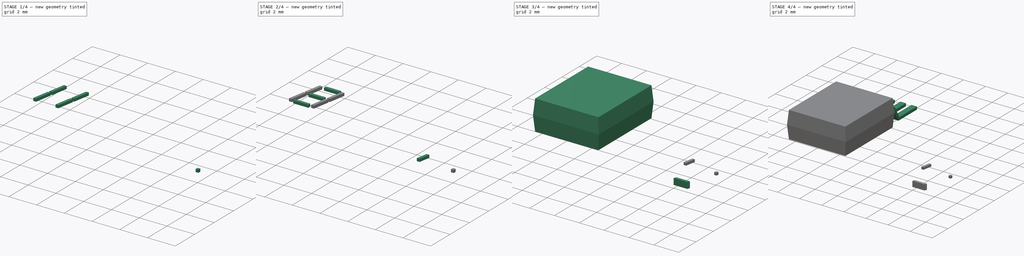
[diagram: build sequence overview — one tinted view per stage of 4, left to right]
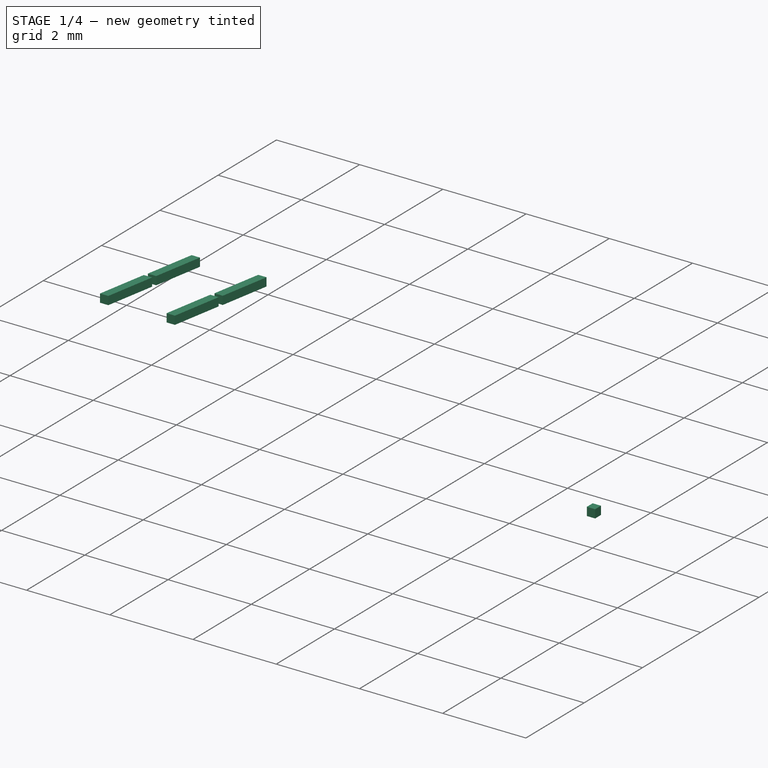
[diagram: stage 1 of 4 — iso view after this stage's code; geometry added in this stage tinted green]
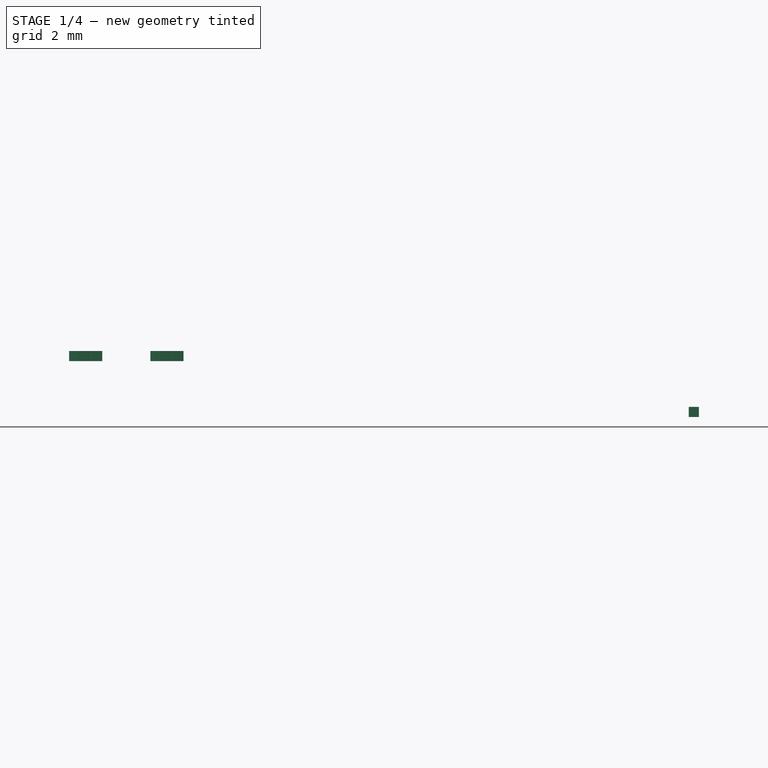
[diagram: stage 1 of 4 — front view after this stage's code; geometry added in this stage tinted green]
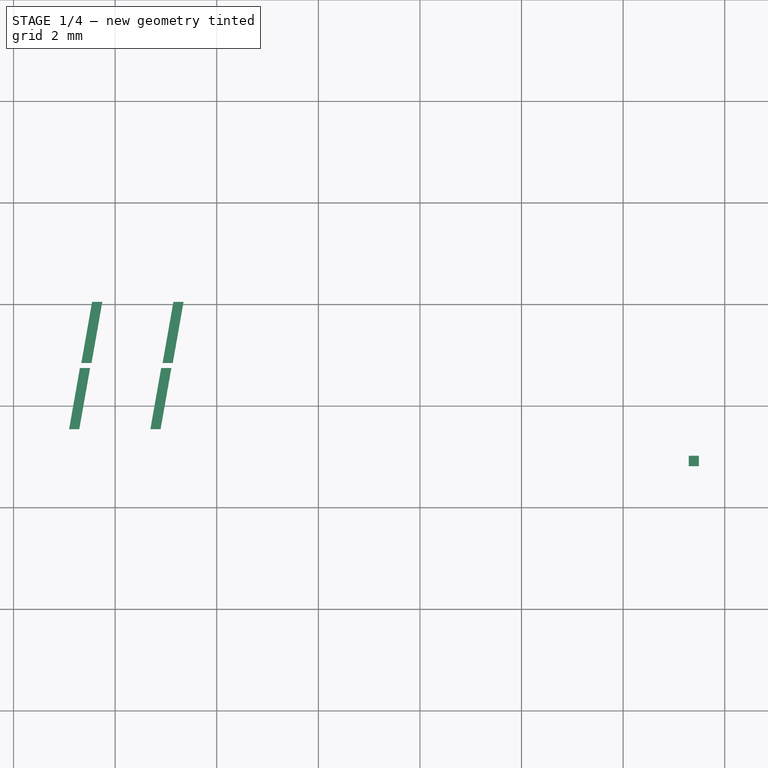
[diagram: stage 1 of 4 — top view after this stage's code; geometry added in this stage tinted green]
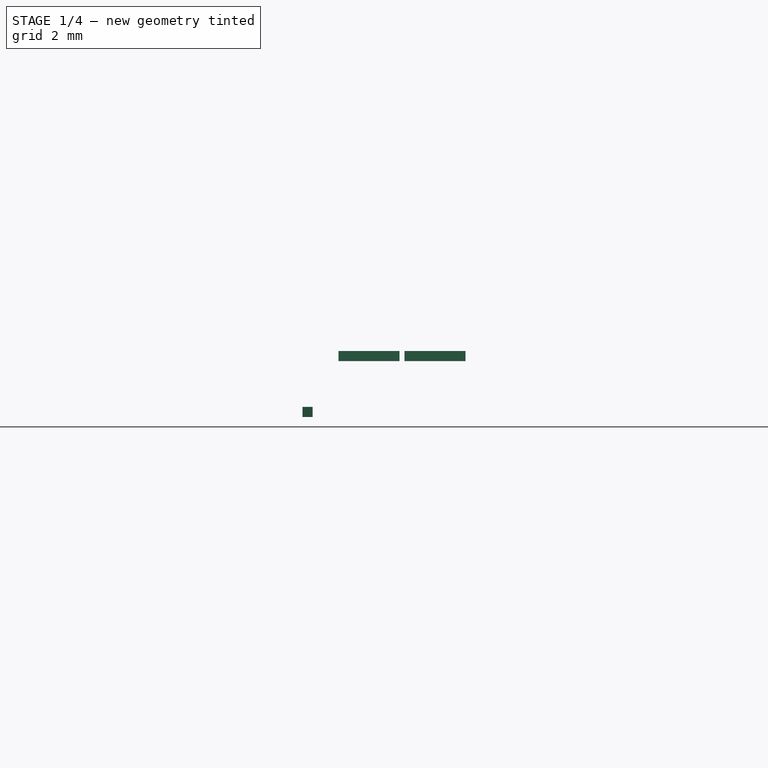
[diagram: stage 1 of 4 — right view after this stage's code; geometry added in this stage tinted green]
FCSTD DOCUMENT  (FreeCAD 0.18R16131 (Git))
Label: ALS314
License: All rights reserved
LicenseURL: http://en.wikipedia.org/wiki/All_rights_reserved
objects: Sketcher::SketchObject×7, PartDesign::Pad×7, PartDesign::Body×7, App::MeasureDistance×4, Part::FeaturePython×3, Part::Mirroring×1, Part::Chamfer×1
note: 33 computed .brp shape members not serialized (recipe doc carries the construction recipe); baked Part::Feature solids carry a one-line shape summary decoded from their .brp

FEATURE [PartDesign::Body] Body004
  Group = -> [Sketch004,Pad004]
  Origin = -> Origin004
  Tip = -> Pad004
FEATURE [Sketcher::SketchObject] Sketch005
  MapMode = 5
  Support = -> [XY_Plane005]
  sketch-geometry (4):
    g0: LineSegment StartX=10.6945 StartY=4.92683 StartZ=0 EndX=10.8945 EndY=4.92681 EndZ=0
    g1: LineSegment StartX=10.8945 StartY=4.92681 StartZ=0 EndX=11.1062 EndY=6.12681 EndZ=0
    g2: LineSegment StartX=11.1062 StartY=6.12681 StartZ=0 EndX=10.9062 EndY=6.12683 EndZ=0
    g3: LineSegment StartX=10.9062 StartY=6.12683 StartZ=0 EndX=10.6945 EndY=4.92683 EndZ=0
  constraints (9):
    c: Coincident(g0,g1)
    c: Coincident(g1,g2)
    c: Coincident(g2,g3)
    c: Coincident(g3,g0)
    c: Parallel(g1,g3)
    c: Angle(g1,g0) = 1.74533
    c: DistanceX(g0,g0) = 0.2
    c: DistanceY(g1,g1) = 1.2
    c: DistanceY(g3,g3) = 1.2
FEATURE [PartDesign::Pad] Pad005
  Length = 0.2
  Length2 = 100
  Profile = -> Sketch005
  Type = 0
FEATURE [PartDesign::Body] Body005
  Group = -> [Sketch005,Pad005]
  Origin = -> Origin005
  Tip = -> Pad005
FEATURE [Part::FeaturePython] Array002  # Draft array (typed FeaturePython)
  Angle = 360
  ArrayType = 0
  Axis = (0,0,1)
  Base = -> Pad005
  Center = (0,0,0)
  Fuse = false
  IntervalAxis = (0,0,0)
  IntervalX = (1.6,0,0)
  IntervalY = (0.24,1.3,0)
  IntervalZ = (0,0,1)
  NumberPolar = 1
  NumberX = 2
  NumberY = 2
  NumberZ = 1
  Placement = pos=(-9.6,0.6,1.1) rot=(0,0,1;0rad)
FEATURE [Sketcher::SketchObject] Sketch006
  MapMode = 5
  Support = -> [XY_Plane006]
  sketch-geometry (4):
    g0: LineSegment StartX=13.2907 StartY=5.01765 StartZ=0 EndX=13.4907 EndY=5.01765 EndZ=0
    g1: LineSegment StartX=13.4907 StartY=5.01765 StartZ=0 EndX=13.4907 EndY=4.81765 EndZ=0
    g2: LineSegment StartX=13.4907 StartY=4.81765 StartZ=0 EndX=13.2907 EndY=4.81765 EndZ=0
    g3: LineSegment StartX=13.2907 StartY=4.81765 StartZ=0 EndX=13.2907 EndY=5.01765 EndZ=0
  constraints (10):
    c: Coincident(g0,g1)
    c: Coincident(g1,g2)
    c: Coincident(g2,g3)
    c: Coincident(g3,g0)
    c: Horizontal(g0)
    c: Horizontal(g2)
    c: Vertical(g1)
    c: Vertical(g3)
    c: DistanceY(g1,g1) = 0.2
    c: DistanceX(g0,g0) = 0.2
FEATURE [PartDesign::Pad] Pad006
  Length = 0.2
  Length2 = 100
  Profile = -> Sketch006
  Type = 0
FEATURE [PartDesign::Body] Body006
  Group = -> [Sketch006,Pad006]
  Origin = -> Origin006
  Placement = pos=(-9.6,0.6,1.1) rot=(0,0,1;0rad)
  Tip = -> Pad006
FEATURE [App::MeasureDistance] Distance  label="Distance: 5,11 mm"
  Distance = 5.10545
  P1 = (-0.277276,5.62597,2.4)
  P2 = (4.82272,5.39013,2.4)
FEATURE [App::MeasureDistance] Distance001  label="Distance: 6,01 mm"
  Distance = 6.01104
  P1 = (1.11049,3.59212,2.4)
  P2 = (1.50129,9.59044,2.4)
FEATURE [App::MeasureDistance] Distance002  label="Distance: 1,00 mm"
  Distance = 1.00165
  P1 = (1e-16,0.862426,0.250166)
  P2 = (1,0.804907,0.250166)
FEATURE [App::MeasureDistance] Distance003  label="Distance: 0,50 mm"
  Distance = 0.500671
  P1 = (1e-16,12.2976,0.250166)
  P2 = (0.5,12.2717,0.250166)
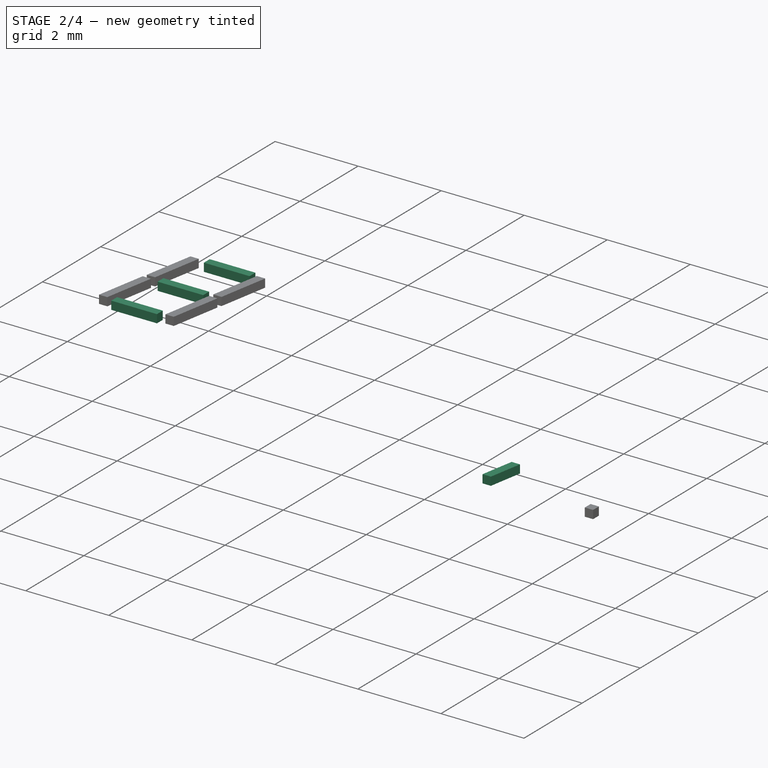
[diagram: stage 2 of 4 — iso view after this stage's code; geometry added in this stage tinted green]
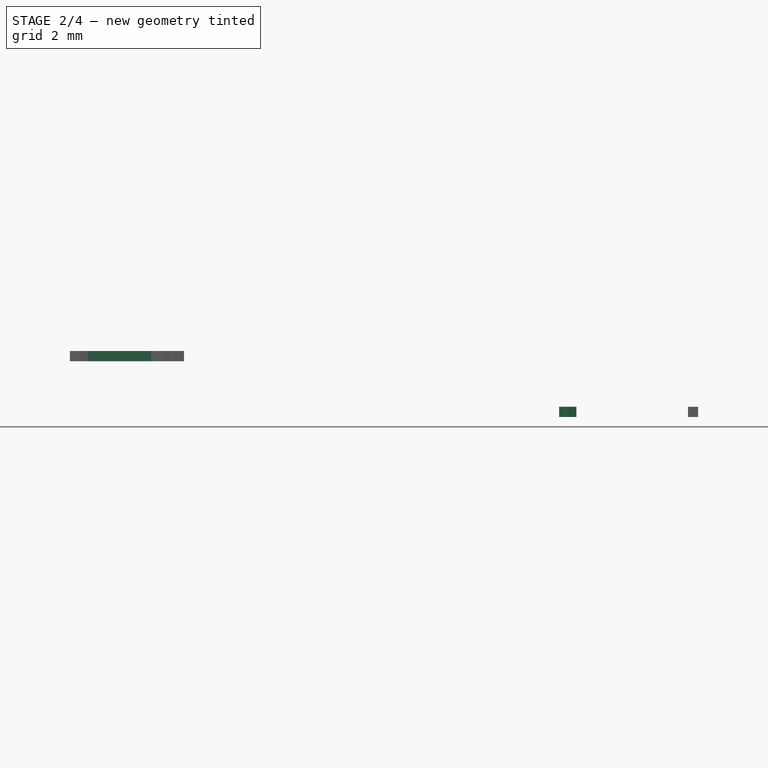
[diagram: stage 2 of 4 — front view after this stage's code; geometry added in this stage tinted green]
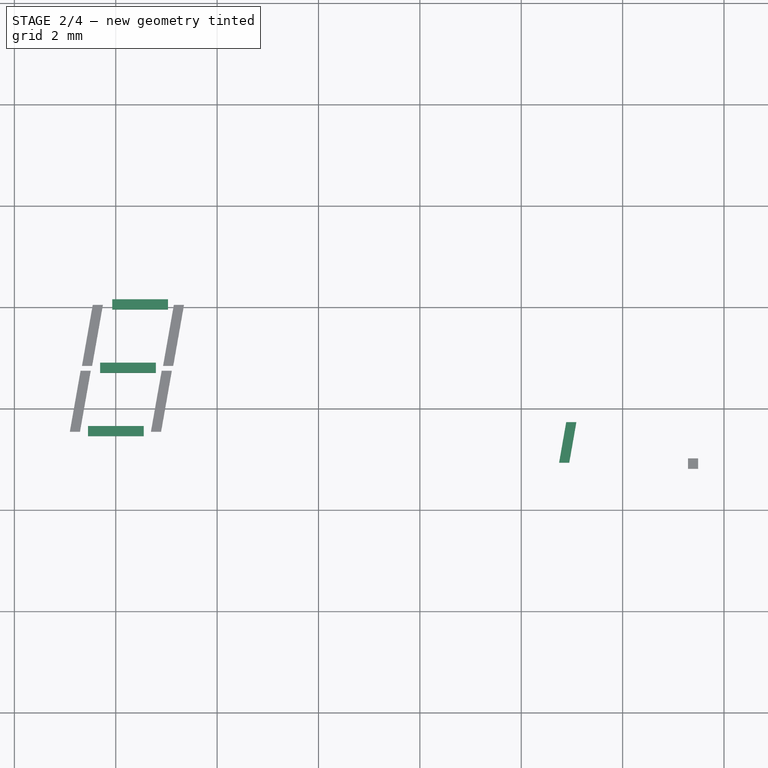
[diagram: stage 2 of 4 — top view after this stage's code; geometry added in this stage tinted green]
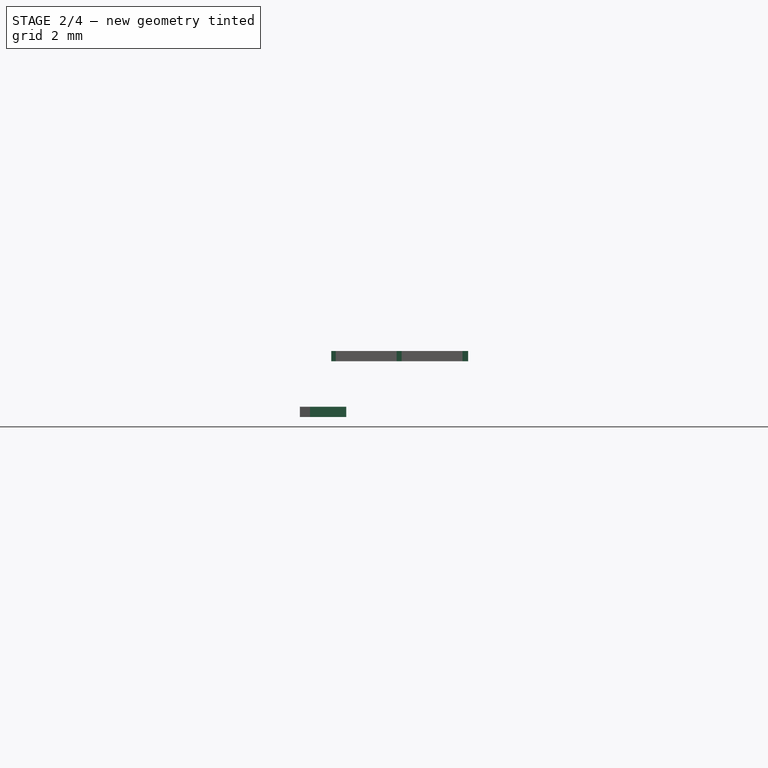
[diagram: stage 2 of 4 — right view after this stage's code; geometry added in this stage tinted green]
FEATURE [PartDesign::Body] Body002
  Group = -> [Sketch002,Pad002]
  Origin = -> Origin002
  Tip = -> Pad002
FEATURE [Sketcher::SketchObject] Sketch003
  MapMode = 5
  Support = -> [XY_Plane003]
  sketch-geometry (4):
    g0: LineSegment StartX=10.9431 StartY=4.20624 StartZ=0 EndX=12.0431 EndY=4.20624 EndZ=0
    g1: LineSegment StartX=12.0431 StartY=4.20624 StartZ=0 EndX=12.0431 EndY=4.00624 EndZ=0
    g2: LineSegment StartX=12.0431 StartY=4.00624 StartZ=0 EndX=10.9431 EndY=4.00624 EndZ=0
    g3: LineSegment StartX=10.9431 StartY=4.00624 StartZ=0 EndX=10.9431 EndY=4.20624 EndZ=0
  constraints (10):
    c: Coincident(g0,g1)
    c: Coincident(g1,g2)
    c: Coincident(g2,g3)
    c: Coincident(g3,g0)
    c: Horizontal(g0)
    c: Horizontal(g2)
    c: Vertical(g1)
    c: Vertical(g3)
    c: DistanceY(g1,g1) = 0.2
    c: DistanceX(g2,g2) = 1.1
FEATURE [PartDesign::Pad] Pad003
  Length = 0.2
  Length2 = 100
  Profile = -> Sketch003
  Type = 0
FEATURE [PartDesign::Body] Body003
  Group = -> [Sketch003,Pad003]
  Origin = -> Origin003
  Placement = pos=(0.109273,0.83182,-0.2) rot=(0,0,1;0rad)
  Tip = -> Pad003
FEATURE [Part::FeaturePython] Array001  # Draft array (typed FeaturePython)
  Angle = 360
  ArrayType = 0
  Axis = (0,0,1)
  Base = -> Body003
  Center = (0,0,0)
  Fuse = false
  IntervalAxis = (0,0,0)
  IntervalX = (1,0,0)
  IntervalY = (0.24,1.25,0)
  IntervalZ = (0,0,1)
  NumberPolar = 1
  NumberX = 1
  NumberY = 3
  NumberZ = 1
  Placement = pos=(-9.6,0.6,1.3) rot=(0,0,1;0rad)
FEATURE [Sketcher::SketchObject] Sketch004
  MapMode = 5
  Support = -> [XY_Plane004]
  sketch-geometry (4):
    g0: LineSegment StartX=10.7471 StartY=4.9341 StartZ=0 EndX=10.9471 EndY=4.93424 EndZ=0
    g1: LineSegment StartX=10.9471 StartY=4.93424 StartZ=0 EndX=11.0876 EndY=5.73424 EndZ=0
    g2: LineSegment StartX=11.0876 StartY=5.73424 StartZ=0 EndX=10.8876 EndY=5.7341 EndZ=0
    g3: LineSegment StartX=10.8876 StartY=5.7341 StartZ=0 EndX=10.7471 EndY=4.9341 EndZ=0
  constraints (9):
    c: Coincident(g0,g1)
    c: Coincident(g1,g2)
    c: Coincident(g2,g3)
    c: Coincident(g3,g0)
    c: Angle(g1,g0) = 1.74533
    c: DistanceX(g0,g0) = 0.2
    c: DistanceX(g2,g2) = 0.2
    c: DistanceY(g1,g1) = 0.8
    c: DistanceY(g3,g3) = 0.8
FEATURE [PartDesign::Pad] Pad004
  Length = 0.2
  Length2 = 100
  Profile = -> Sketch004
  Type = 0
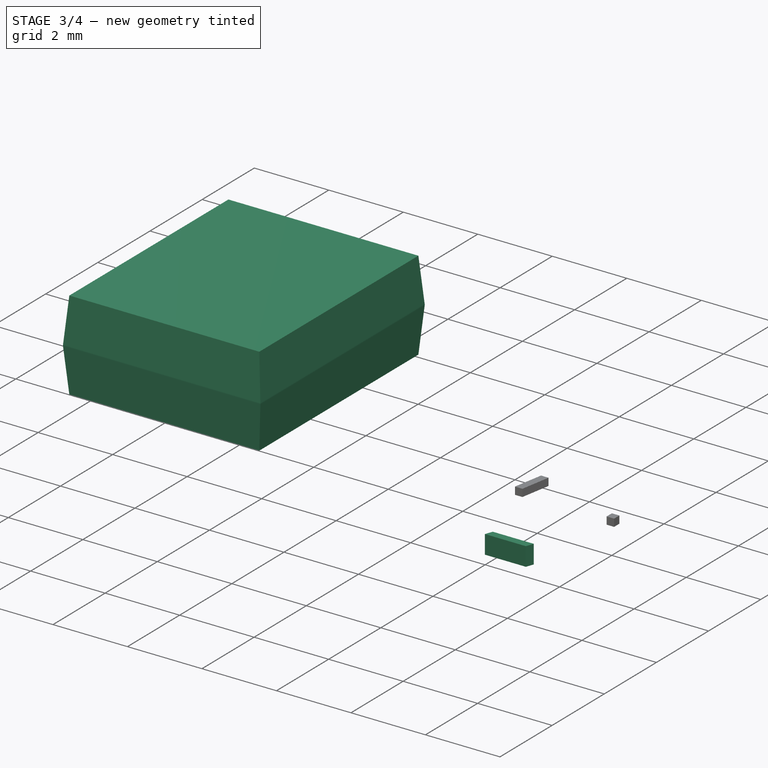
[diagram: stage 3 of 4 — iso view after this stage's code; geometry added in this stage tinted green]
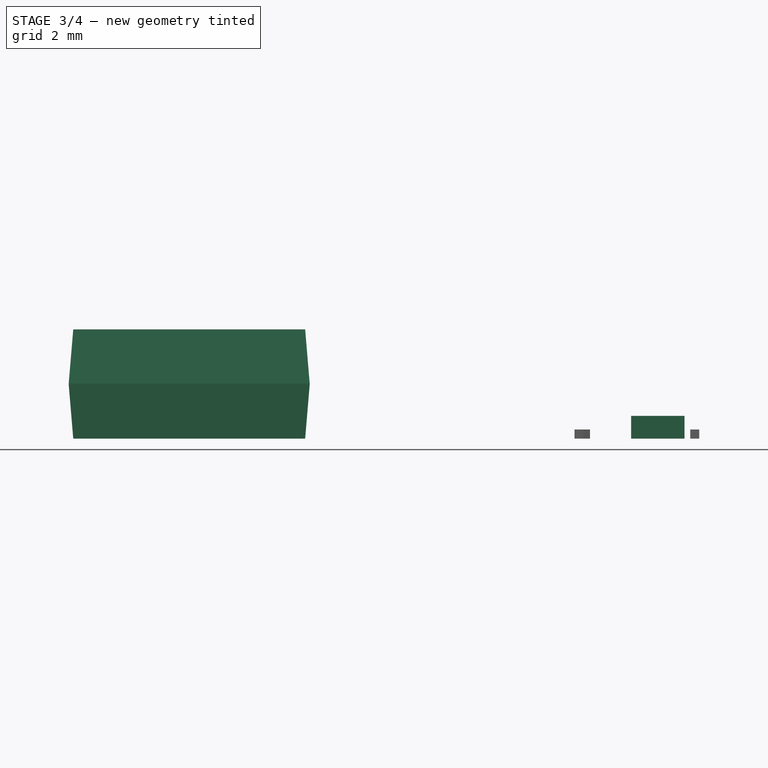
[diagram: stage 3 of 4 — front view after this stage's code; geometry added in this stage tinted green]
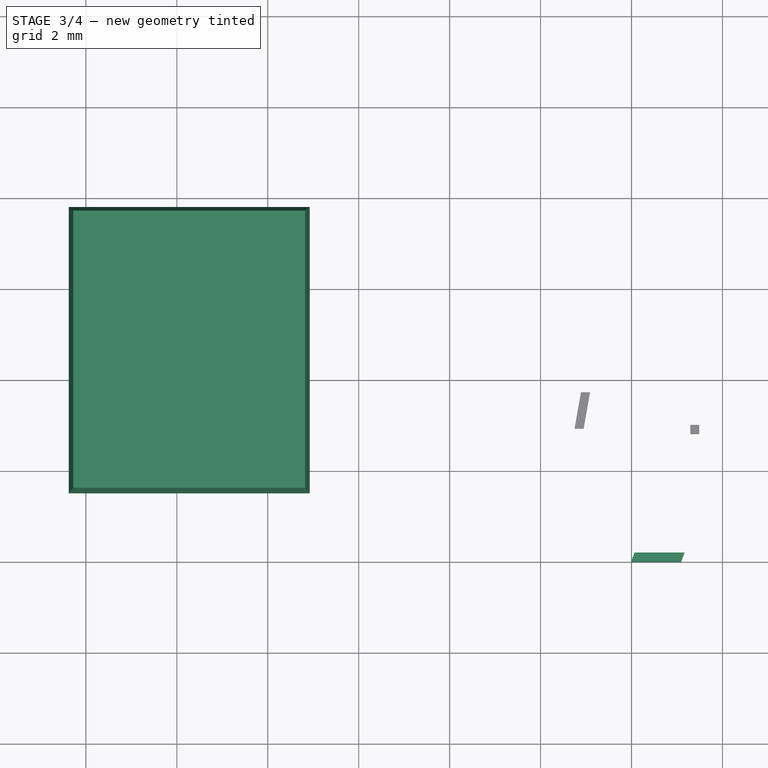
[diagram: stage 3 of 4 — top view after this stage's code; geometry added in this stage tinted green]
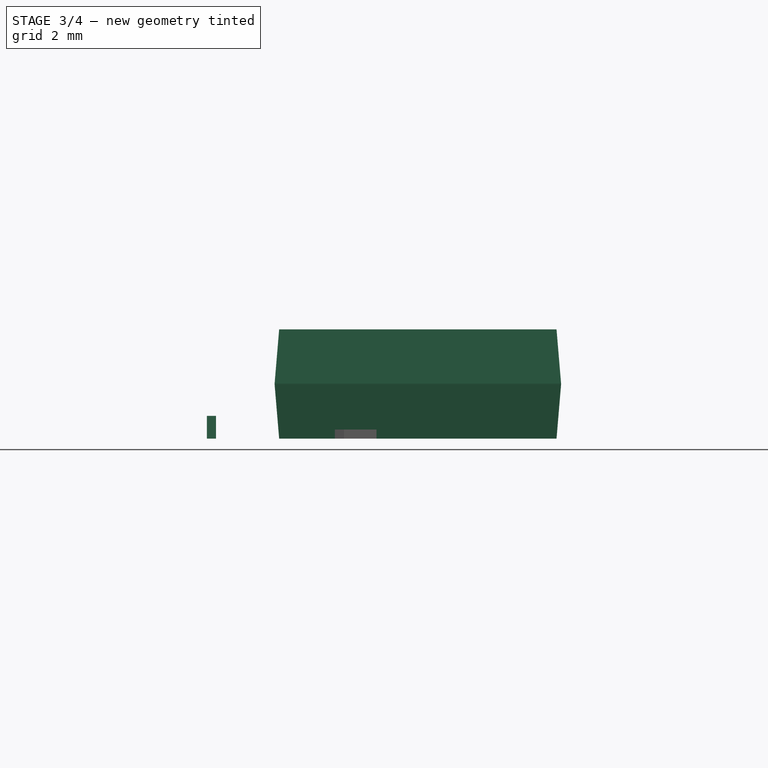
[diagram: stage 3 of 4 — right view after this stage's code; geometry added in this stage tinted green]
FEATURE [Sketcher::SketchObject] Sketch001
  MapMode = 5
  Support = -> [XY_Plane001]
  sketch-geometry (4):
    g0: LineSegment StartX=-0.377276 StartY=9.79212 StartZ=0 EndX=4.92272 EndY=9.79212 EndZ=0
    g1: LineSegment StartX=4.92272 StartY=9.79212 StartZ=0 EndX=4.92272 EndY=3.49212 EndZ=0
    g2: LineSegment StartX=4.92272 StartY=3.49212 StartZ=0 EndX=-0.377276 EndY=3.49212 EndZ=0
    g3: LineSegment StartX=-0.377276 StartY=3.49212 StartZ=0 EndX=-0.377276 EndY=9.79212 EndZ=0
  constraints (10):
    c: Coincident(g0,g1)
    c: Coincident(g1,g2)
    c: Coincident(g2,g3)
    c: Coincident(g3,g0)
    c: Horizontal(g0)
    c: Horizontal(g2)
    c: Vertical(g1)
    c: Vertical(g3)
    c: DistanceY(g1,g1) = 6.3
    c: DistanceX(g0,g0) = 5.3
FEATURE [PartDesign::Pad] Pad001
  Length = 2.4
  Length2 = 100
  Profile = -> Sketch001
  Type = 0
FEATURE [PartDesign::Body] Body001
  Group = -> [Sketch001,Pad001]
  Origin = -> Origin001
  Tip = -> Pad001
FEATURE [Part::Chamfer] Chamfer
  Base = -> Pad001
  Edges = 8 edges: [Edge3 r1=1.19 r2=0.1,Edge4 r1=1.19 r2=0.1,Edge6 r1=1.19 r2=0.1,Edge7 r1=1.19 r2=0.1,Edge9 r1=1.19 r2=0.1,Edge10 r1=1.19 r2=0.1,Edge11 r1=1.19 r2=0.1,Edge12 r1=1.19 r2=0.1]
FEATURE [Sketcher::SketchObject] Sketch002
  MapMode = 5
  Support = -> [XY_Plane002]
  sketch-geometry (4):
    g0: LineSegment StartX=11.9918 StartY=2.00389 StartZ=0 EndX=12.0646 EndY=2.20389 EndZ=0
    g1: LineSegment StartX=12.0646 StartY=2.20389 StartZ=0 EndX=13.1646 EndY=2.20365 EndZ=0
    g2: LineSegment StartX=13.1646 StartY=2.20365 StartZ=0 EndX=13.0918 EndY=2.00365 EndZ=0
    g3: LineSegment StartX=13.0918 StartY=2.00365 StartZ=0 EndX=11.9918 EndY=2.00389 EndZ=0
  constraints (9):
    c: Coincident(g0,g1)
    c: Coincident(g1,g2)
    c: Coincident(g2,g3)
    c: Coincident(g3,g0)
    c: Parallel(g2,g0)
    c: Parallel(g1,g3)
    c: Angle(g2,g3) = 1.91986
    c: DistanceY(g0,g0) = 0.2
    c: DistanceX(g3,g3) = 1.1
FEATURE [PartDesign::Pad] Pad002
  Length = 0.5
  Length2 = 100
  Profile = -> Sketch002
  Type = 0
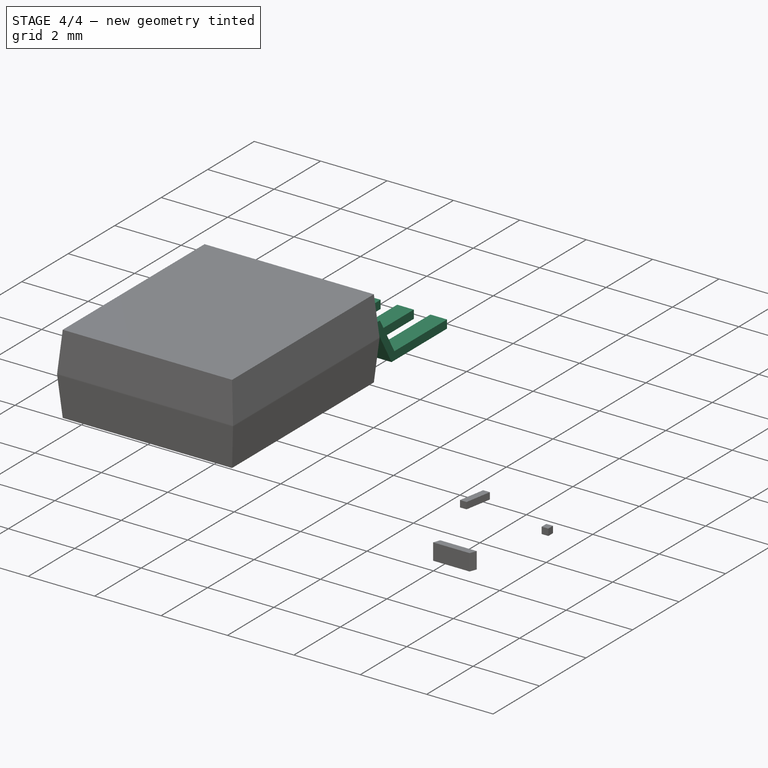
[diagram: stage 4 of 4 — iso view after this stage's code; geometry added in this stage tinted green]
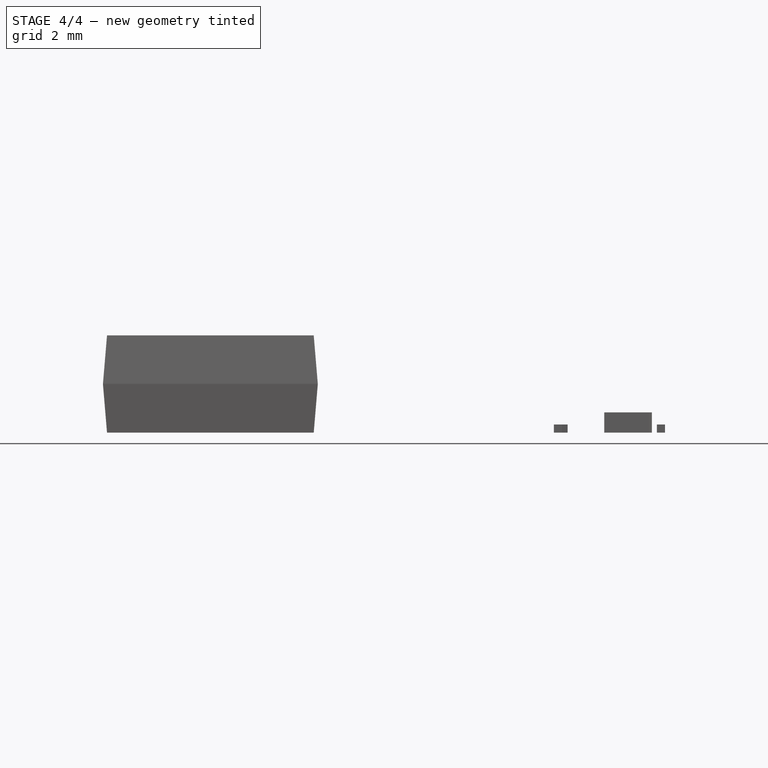
[diagram: stage 4 of 4 — front view after this stage's code; geometry added in this stage tinted green]
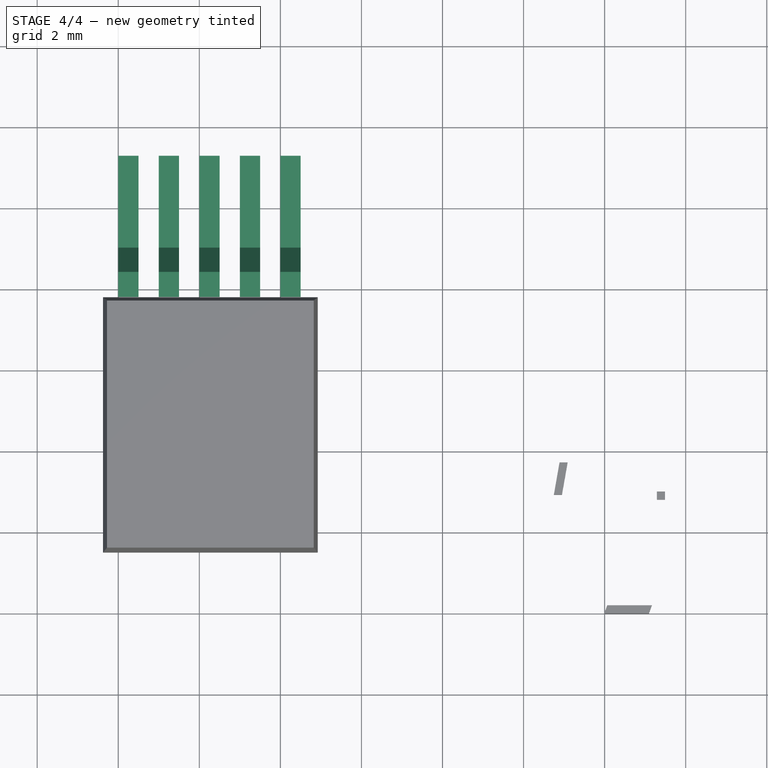
[diagram: stage 4 of 4 — top view after this stage's code; geometry added in this stage tinted green]
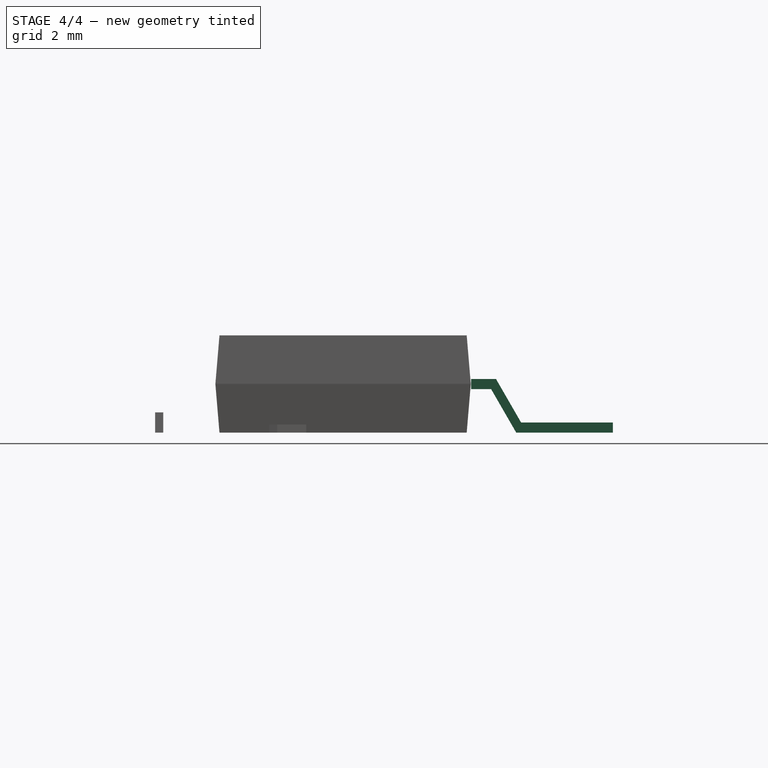
[diagram: stage 4 of 4 — right view after this stage's code; geometry added in this stage tinted green]
FEATURE [Sketcher::SketchObject] Sketch
  MapMode = 5
  Placement = pos=(0,0,0) rot=(0.57735,0.57735,0.57735;2.0944rad)
  Support = -> [YZ_Plane]
  sketch-geometry (8):
    g0: LineSegment StartX=0.00032 StartY=0.000166 StartZ=0 EndX=2.38562 EndY=0.000166 EndZ=0
    g1: LineSegment StartX=2.38562 StartY=0.000166 StartZ=0 EndX=3.00513 EndY=1.07319 EndZ=0
    g2: LineSegment StartX=3.00513 StartY=1.07319 StartZ=0 EndX=3.49934 EndY=1.07319 EndZ=0
    g3: LineSegment StartX=3.49934 StartY=1.07319 StartZ=0 EndX=3.49934 EndY=1.32319 EndZ=0
    g4: LineSegment StartX=3.49934 StartY=1.32319 StartZ=0 EndX=2.88506 EndY=1.32319 EndZ=0
    g5: LineSegment StartX=2.88506 StartY=1.32319 StartZ=0 EndX=2.26555 EndY=0.250166 EndZ=0
    g6: LineSegment StartX=2.26555 StartY=0.250166 StartZ=0 EndX=0.00032 EndY=0.250166 EndZ=0
    g7: LineSegment StartX=0.00032 StartY=0.250166 StartZ=0 EndX=0.00032 EndY=0.000166 EndZ=0
  constraints (18):
    c: Coincident(g0,g1)
    c: Coincident(g1,g2)
    c: Coincident(g2,g3)
    c: Coincident(g3,g4)
    c: Coincident(g4,g5)
    c: Coincident(g5,g6)
    c: Coincident(g6,g7)
    c: Coincident(g7,g0)
    c: Parallel(g5,g1)
    c: Parallel(g4,g2)
    c: Parallel(g7,g3)
    c: Parallel(g6,g0)
    c: DistanceY(g3,g3) = 0.25
    c: Angle(g1,g0) = 2.0944
    c: DistanceY(g7,g7) = 0.25
    c: Angle(g0,g7) = 1.5708
    c: Angle(g3,g2) = 1.5708
    c: Horizontal(g4)
FEATURE [PartDesign::Pad] Pad
  Length = 0.5
  Length2 = 100
  Placement = pos=(0,0,0) rot=(0.57735,0.57735,0.57735;2.0944rad)
  Profile = -> Sketch
  Type = 0
FEATURE [PartDesign::Body] Body
  Group = -> [Sketch,Pad]
  Origin = -> Origin
  Tip = -> Pad
FEATURE [Part::FeaturePython] Array  # Draft array (typed FeaturePython)
  Angle = 360
  ArrayType = 0
  Axis = (0,0,1)
  Base = -> Body
  Center = (0,0,0)
  Fuse = false
  IntervalAxis = (0,0,0)
  IntervalX = (1,0,0)
  IntervalY = (0,1,0)
  IntervalZ = (0,0,1)
  NumberPolar = 1
  NumberX = 5
  NumberY = 1
  NumberZ = 1
FEATURE [Part::Mirroring] Part__Mirroring  label="Array (Mirror #1)"
  Base = (0,0,0)
  Normal = (0,1,0)
  Placement = pos=(0,13.3,0) rot=(0,0,1;0rad)
  Source = -> Array
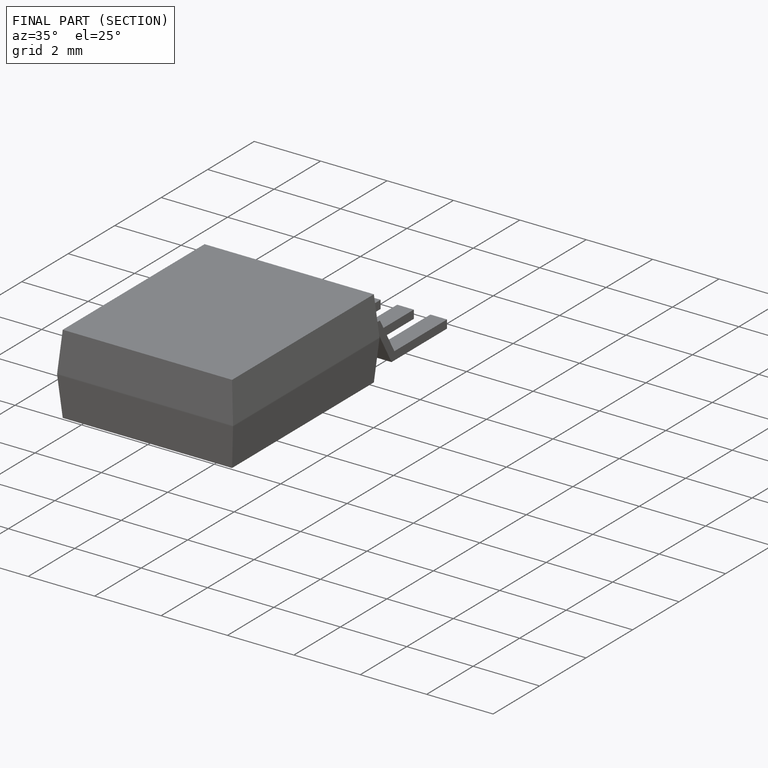
[diagram: finished part — half-section view (interior)]
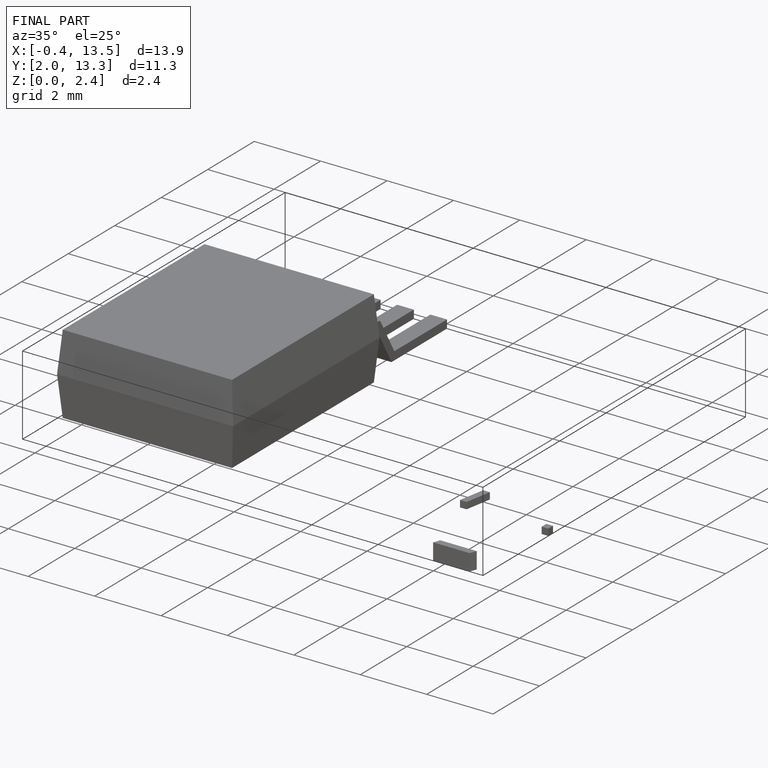
[diagram: finished part — iso view with bounding-box wireframe]
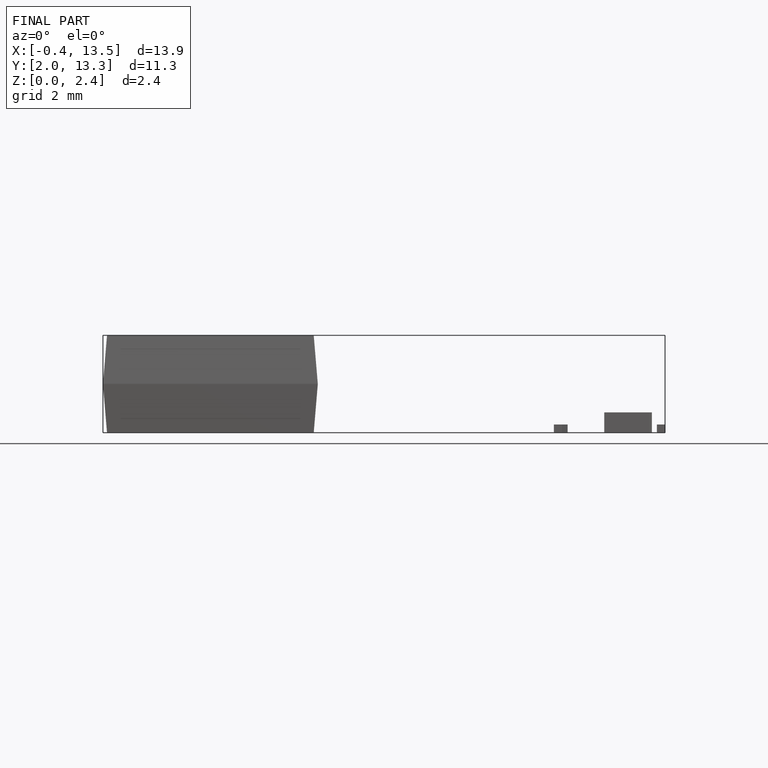
[diagram: finished part — front view with bounding-box wireframe]
